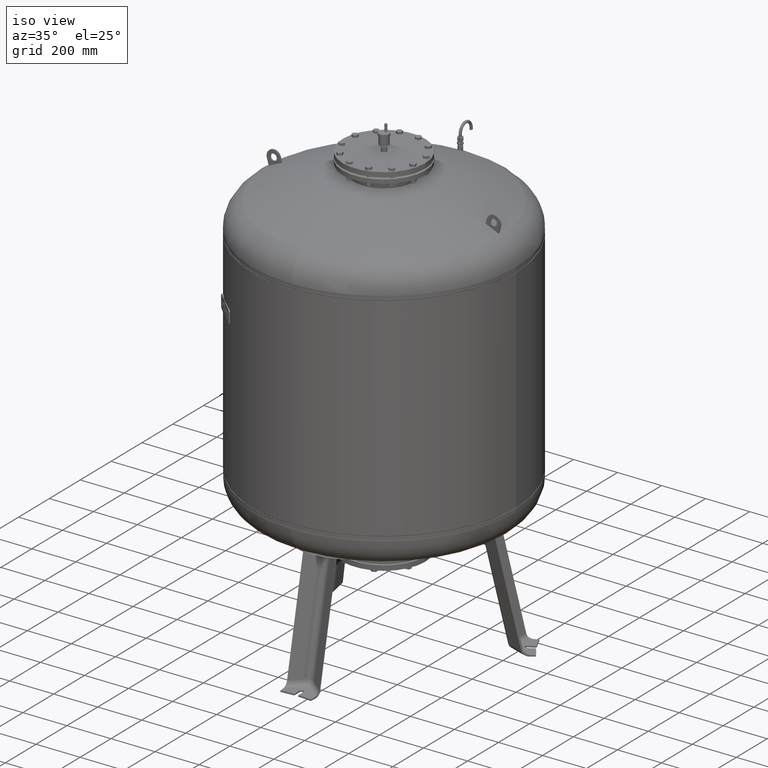
[diagram: clean part render]
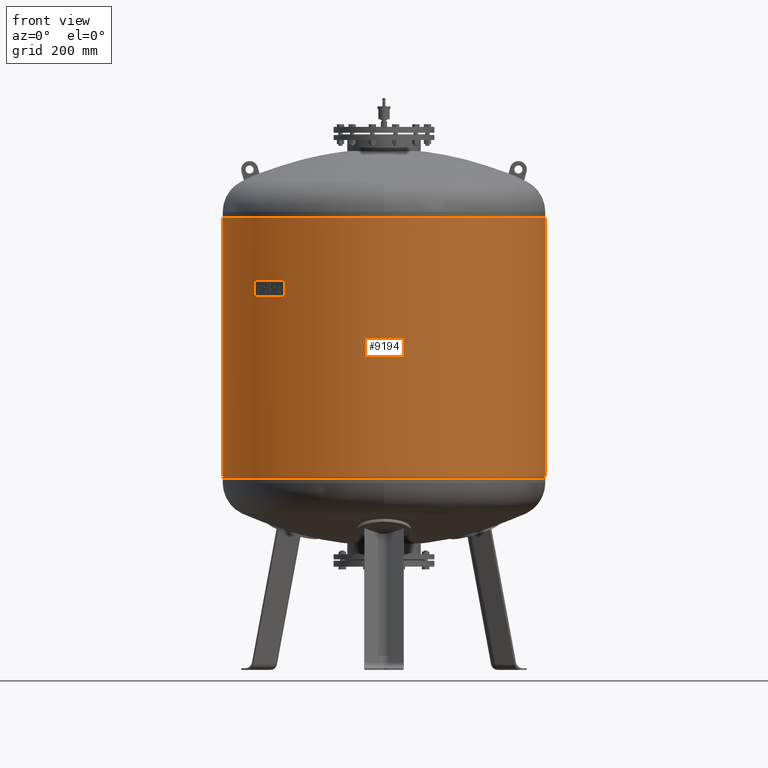
[diagram: tour spotlight — one face highlighted and labeled with its STEP entity id]
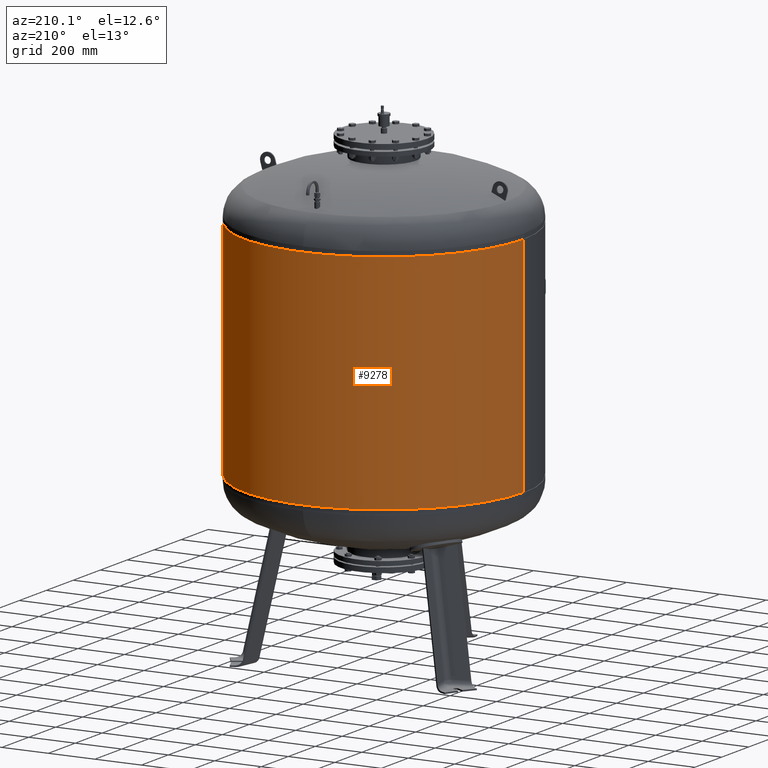
[diagram: tour spotlight — one face highlighted and labeled with its STEP entity id]
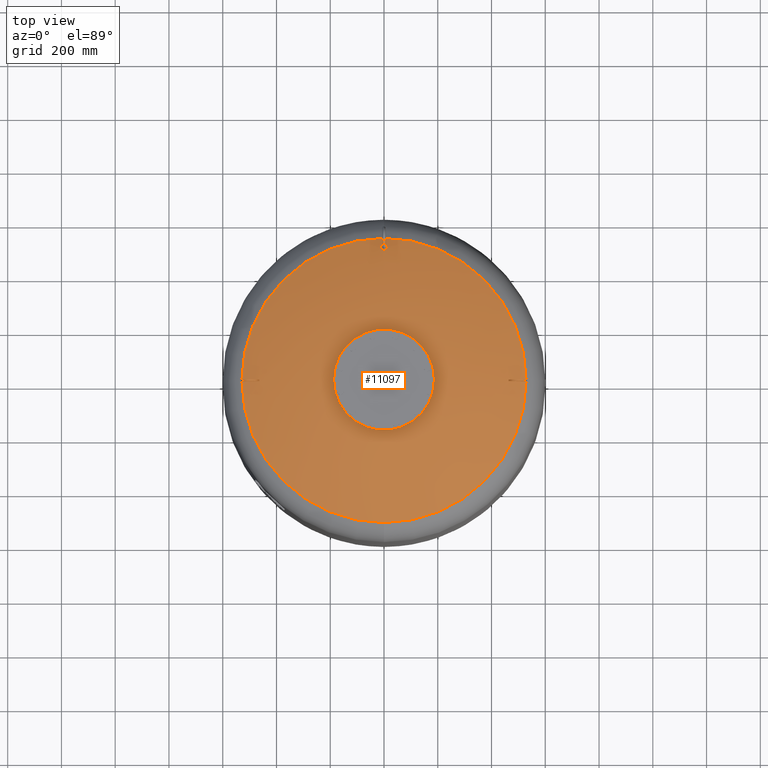
[diagram: tour spotlight — one face highlighted and labeled with its STEP entity id]
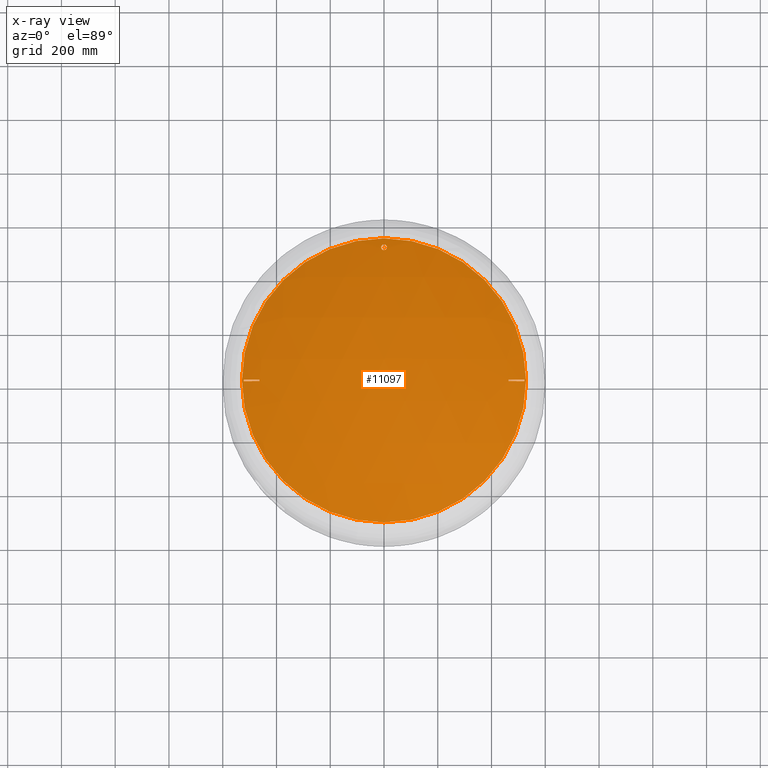
[diagram: x-ray of the same camera — body ghosted, this tour face saturated]
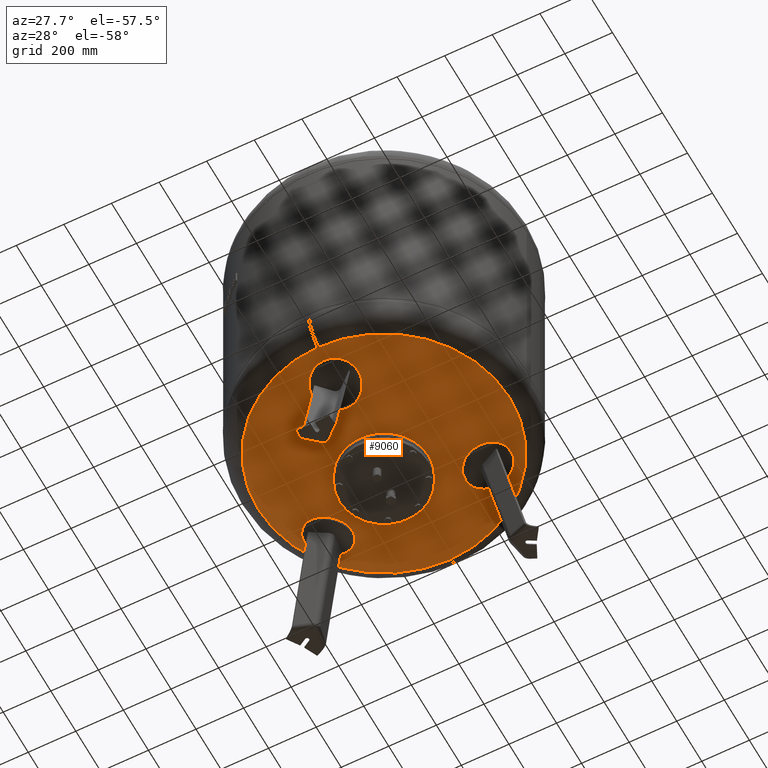
[diagram: tour spotlight — one face highlighted and labeled with its STEP entity id]
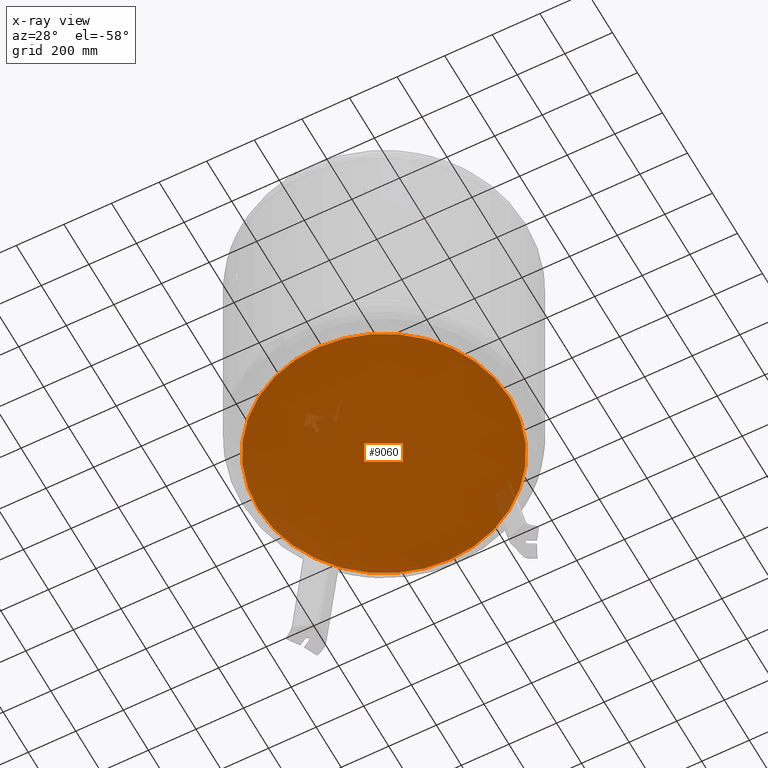
[diagram: x-ray of the same camera — body ghosted, this tour face saturated]
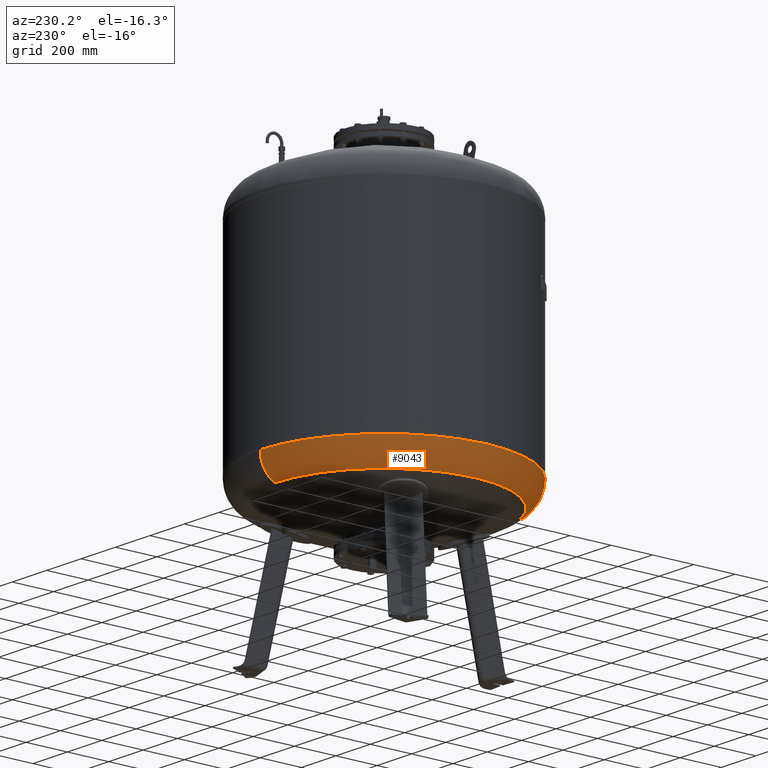
[diagram: tour spotlight — one face highlighted and labeled with its STEP entity id]
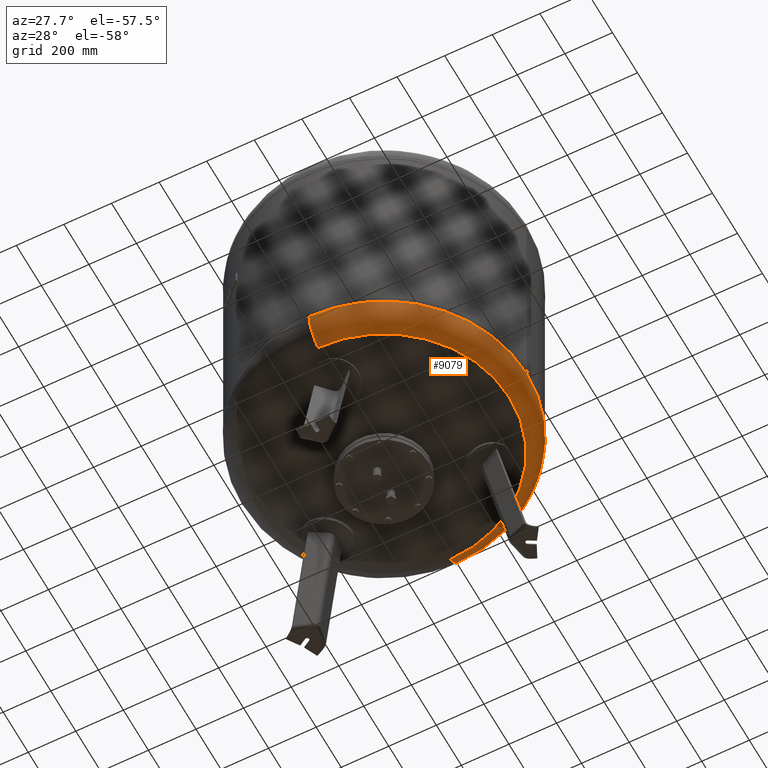
[diagram: tour spotlight — one face highlighted and labeled with its STEP entity id]
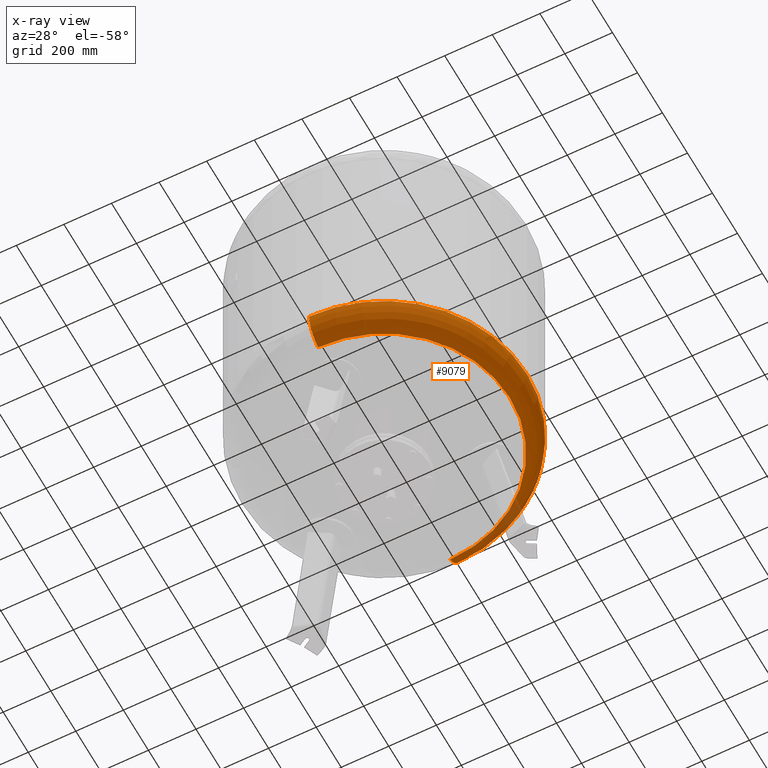
[diagram: x-ray of the same camera — body ghosted, this tour face saturated]
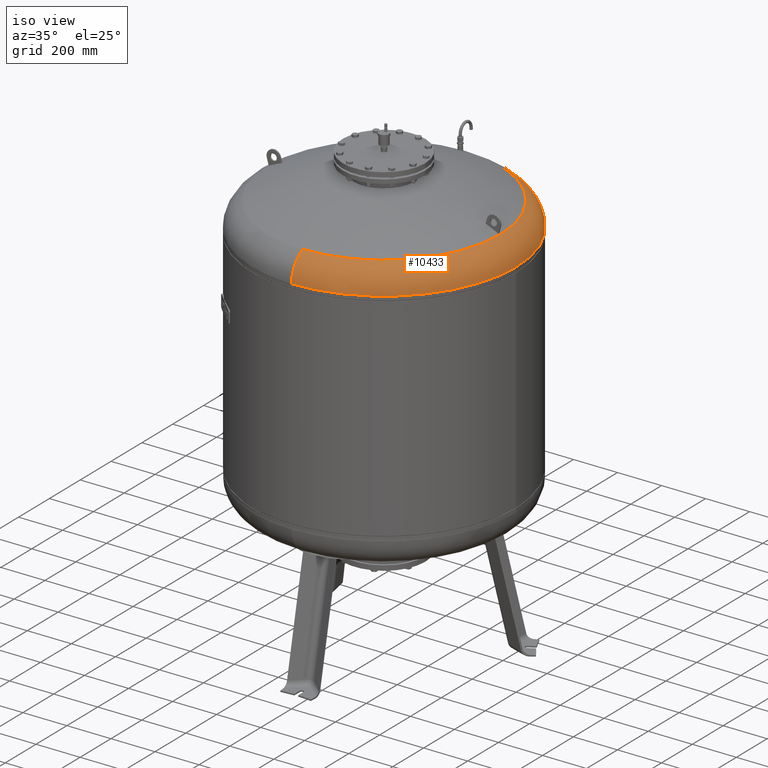
[diagram: tour spotlight — one face highlighted and labeled with its STEP entity id]
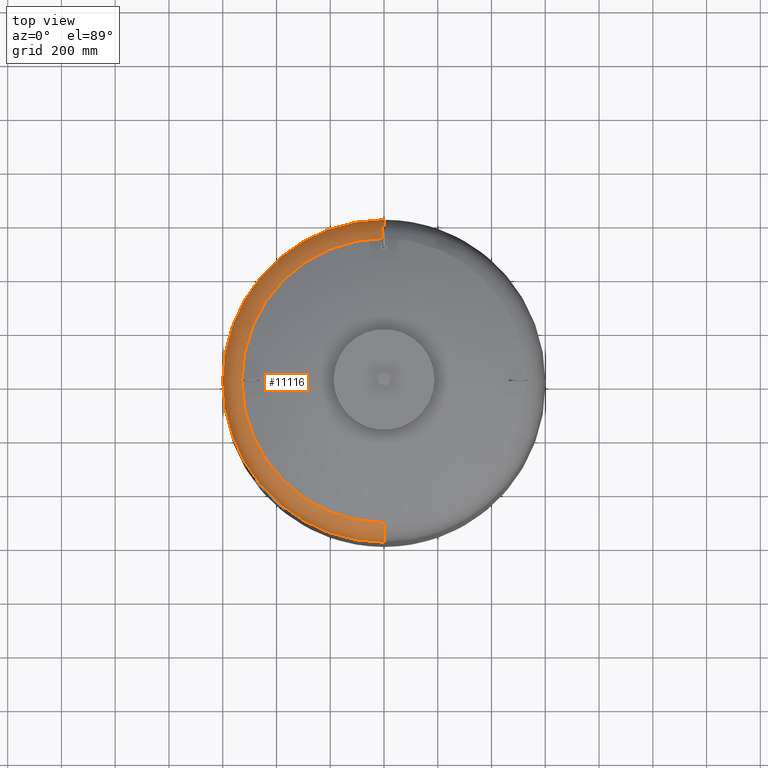
[diagram: tour spotlight — one face highlighted and labeled with its STEP entity id]
A machine part: a face-by-face anatomy tour. The part has 784 B-rep faces; the first image is the clean iso view, then the 8 largest visible faces are spotlighted one at a time (largest first), each with its STEP entity span.

Face 1 — front view, entity #9194. In plain terms, the highlighted cylindrical surface (partial cylindrical patch) has radius 600 mm, axis along (0, 0, 1).
Definition (entity closure, byte-faithful):
#9153=CARTESIAN_POINT('',(8.293918E-015,0.0,1433.500000000000000));
#9154=DIRECTION('',(3.337593E-017,0.0,1.0));
#9155=DIRECTION('',(1.0,0.0,0.0));
#9156=AXIS2_PLACEMENT_3D('',#9153,#9154,#9155);
#9157=CYLINDRICAL_SURFACE('',#9156,600.000000000000450);
#9158=CARTESIAN_POINT('',(600.000000000000570,0.0,1681.999999999999800));
#9159=VERTEX_POINT('',#9158);
#9160=CARTESIAN_POINT('',(600.000000000000110,0.0,717.999999999999770));
#9161=VERTEX_POINT('',#9160);
#9162=CARTESIAN_POINT('',(600.000000000000570,0.0,1681.999999999999800));
#9163=DIRECTION('',(0.0,0.0,-1.0));
#9164=VECTOR('',#9163,964.0);
#9165=LINE('',#9162,#9164);
#9166=EDGE_CURVE('',#9159,#9161,#9165,.T.);
#9167=ORIENTED_EDGE('',*,*,#9166,.F.);
#9168=CARTESIAN_POINT('',(-600.000000000000450,-7.347638E-014,1681.999999999999800));
#9169=VERTEX_POINT('',#9168);
#9170=CARTESIAN_POINT('',(1.658784E-014,0.0,1681.999999999999800));
#9171=DIRECTION('',(0.0,0.0,1.0));
#9172=DIRECTION('',(1.0,0.0,0.0));
#9173=AXIS2_PLACEMENT_3D('',#9170,#9171,#9172);
#9174=CIRCLE('',#9173,600.000000000000570);
#9175=EDGE_CURVE('',#9169,#9159,#9174,.T.);
#9176=ORIENTED_EDGE('',*,*,#9175,.F.);
#9177=CARTESIAN_POINT('',(-600.000000000000110,-7.347638E-014,717.999999999999770));
#9178=VERTEX_POINT('',#9177);
#9179=CARTESIAN_POINT('',(-600.000000000000450,-7.347638E-014,1681.999999999999800));
#9180=DIRECTION('',(0.0,0.0,-1.0));
#9181=VECTOR('',#9180,964.0);
#9182=LINE('',#9179,#9181);
#9183=EDGE_CURVE('',#9169,#9178,#9182,.T.);
#9184=ORIENTED_EDGE('',*,*,#9183,.T.);
#9185=CARTESIAN_POINT('',(-1.658784E-014,0.0,717.999999999999770));
#9186=DIRECTION('',(0.0,0.0,1.0));
#9187=DIRECTION('',(1.0,0.0,0.0));
#9188=AXIS2_PLACEMENT_3D('',#9185,#9186,#9187);
#9189=CIRCLE('',#9188,600.000000000000110);
#9190=EDGE_CURVE('',#9178,#9161,#9189,.T.);
#9191=ORIENTED_EDGE('',*,*,#9190,.T.);
#9192=EDGE_LOOP('',(#9167,#9176,#9184,#9191));
#9193=FACE_OUTER_BOUND('',#9192,.T.);
#9194=ADVANCED_FACE('',(#9193),#9157,.T.);

Face 2 — auxiliary view, entity #9278. In plain terms, the highlighted cylindrical surface (partial cylindrical patch) has radius 600 mm, axis along (0, 0, 1).
Definition (entity closure, byte-faithful):
#9158=CARTESIAN_POINT('',(600.000000000000570,0.0,1681.999999999999800));
#9159=VERTEX_POINT('',#9158);
#9160=CARTESIAN_POINT('',(600.000000000000110,0.0,717.999999999999770));
#9161=VERTEX_POINT('',#9160);
#9162=CARTESIAN_POINT('',(600.000000000000570,0.0,1681.999999999999800));
#9163=DIRECTION('',(0.0,0.0,-1.0));
#9164=VECTOR('',#9163,964.0);
#9165=LINE('',#9162,#9164);
#9166=EDGE_CURVE('',#9159,#9161,#9165,.T.);
#9168=CARTESIAN_POINT('',(-600.000000000000450,-7.347638E-014,1681.999999999999800));
#9169=VERTEX_POINT('',#9168);
#9177=CARTESIAN_POINT('',(-600.000000000000110,-7.347638E-014,717.999999999999770));
#9178=VERTEX_POINT('',#9177);
#9179=CARTESIAN_POINT('',(-600.000000000000450,-7.347638E-014,1681.999999999999800));
#9180=DIRECTION('',(0.0,0.0,-1.0));
#9181=VECTOR('',#9180,964.0);
#9182=LINE('',#9179,#9181);
#9183=EDGE_CURVE('',#9169,#9178,#9182,.T.);
#9251=CARTESIAN_POINT('',(-1.658784E-014,0.0,717.999999999999770));
#9252=DIRECTION('',(0.0,0.0,1.0));
#9253=DIRECTION('',(1.0,0.0,0.0));
#9254=AXIS2_PLACEMENT_3D('',#9251,#9252,#9253);
#9255=CIRCLE('',#9254,600.000000000000110);
#9256=EDGE_CURVE('',#9161,#9178,#9255,.T.);
#9261=CARTESIAN_POINT('',(8.293918E-015,0.0,1433.500000000000000));
#9262=DIRECTION('',(3.337593E-017,0.0,1.0));
#9263=DIRECTION('',(1.0,0.0,0.0));
#9264=AXIS2_PLACEMENT_3D('',#9261,#9262,#9263);
#9265=CYLINDRICAL_SURFACE('',#9264,600.000000000000450);
#9266=ORIENTED_EDGE('',*,*,#9166,.T.);
#9267=ORIENTED_EDGE('',*,*,#9256,.T.);
#9268=ORIENTED_EDGE('',*,*,#9183,.F.);
#9269=CARTESIAN_POINT('',(1.658784E-014,0.0,1681.999999999999800));
#9270=DIRECTION('',(0.0,0.0,1.0));
#9271=DIRECTION('',(1.0,0.0,0.0));
#9272=AXIS2_PLACEMENT_3D('',#9269,#9270,#9271);
#9273=CIRCLE('',#9272,600.000000000000570);
#9274=EDGE_CURVE('',#9159,#9169,#9273,.T.);
#9275=ORIENTED_EDGE('',*,*,#9274,.F.);
#9276=EDGE_LOOP('',(#9266,#9267,#9268,#9275));
#9277=FACE_OUTER_BOUND('',#9276,.T.);
#9278=ADVANCED_FACE('',(#9277),#9265,.T.);

Face 3 — top view, entity #11097. An x-ray twin of the same camera follows (body ghosted, this face saturated) — the face is partly hidden behind the body. In plain terms, the highlighted spherical surface has radius 1207 mm.
Definition (entity closure, byte-faithful):
#10389=CARTESIAN_POINT('',(3.894773E-014,-528.621296296296240,1818.084570483805000));
#10390=VERTEX_POINT('',#10389);
#10406=CARTESIAN_POINT('',(1.036830E-013,528.621296296296240,1818.084570483805000));
#10407=VERTEX_POINT('',#10406);
#10415=CARTESIAN_POINT('',(528.621296296296240,-2.239550E-014,1818.084570483805000));
#10416=VERTEX_POINT('',#10415);
#10417=CARTESIAN_POINT('',(3.410787E-015,-2.239550E-014,1818.084570483805000));
#10418=DIRECTION('',(0.0,0.0,-1.0));
#10419=DIRECTION('',(1.0,0.0,0.0));
#10420=AXIS2_PLACEMENT_3D('',#10417,#10418,#10419);
#10421=CIRCLE('',#10420,528.621296296296240);
#10422=EDGE_CURVE('',#10407,#10416,#10421,.T.);
#10424=CARTESIAN_POINT('',(3.410787E-015,-2.239550E-014,1818.084570483805000));
#10425=DIRECTION('',(0.0,0.0,-1.0));
#10426=DIRECTION('',(1.0,0.0,0.0));
#10427=AXIS2_PLACEMENT_3D('',#10424,#10425,#10426);
#10428=CIRCLE('',#10427,528.621296296296240);
#10429=EDGE_CURVE('',#10416,#10390,#10428,.T.);
#10546=CARTESIAN_POINT('',(-2.007040E-015,505.649999999999860,1828.977681113990700));
#10547=VERTEX_POINT('',#10546);
#10563=CARTESIAN_POINT('',(-1.264167E-015,484.349999999999910,1838.556003782712200));
#10564=VERTEX_POINT('',#10563);
#10571=CARTESIAN_POINT('',(-2.007040E-015,505.649999999999860,1828.977681113990700));
#10572=CARTESIAN_POINT('',(0.665662584297549,505.649999999999860,1828.977681113990700));
#10573=CARTESIAN_POINT('',(1.351770687093055,505.586540768528720,1829.006343822394000));
#10574=CARTESIAN_POINT('',(2.711440963249272,505.322316471514680,1829.125671514436600));
#10575=CARTESIAN_POINT('',(3.385018268838315,505.121615967431920,1829.216307020834800));
#10576=CARTESIAN_POINT('',(4.671659030031331,504.595887700676490,1829.453675611560400));
#10577=CARTESIAN_POINT('',(5.285911664195235,504.270411104392170,1829.600610399233600));
#10578=CARTESIAN_POINT('',(6.417878505985882,503.525973237725340,1829.936594437422400));
#10579=CARTESIAN_POINT('',(6.935591451669527,503.107009891746090,1830.125643340669500));
#10580=CARTESIAN_POINT('',(7.899179737395372,502.177760642695380,1830.544825043460200));
#10581=CARTESIAN_POINT('',(8.368086172563061,501.627357286810370,1830.793043409988300));
#10582=CARTESIAN_POINT('',(9.188061671035127,500.433806541515650,1831.331089151719900));
#10583=CARTESIAN_POINT('',(9.539219073899449,499.790709135051770,1831.620892770933300));
#10584=CARTESIAN_POINT('',(10.100224561864263,498.454426017124770,1832.222810133959700));
#10585=CARTESIAN_POINT('',(10.310462392525917,497.760351114898870,1832.535323620084000));
#10586=CARTESIAN_POINT('',(10.585380396556634,496.369268012084210,1833.161397323186300));
#10587=CARTESIAN_POINT('',(10.650000000000000,495.672249771665920,1833.474961828124200));
#10588=CARTESIAN_POINT('',(10.650000000000000,494.328136578031490,1834.079385679025300));
#10589=CARTESIAN_POINT('',(10.585453694089722,493.631410911690520,1834.392563213996700));
#10590=CARTESIAN_POINT('',(10.310736765036932,492.240729558734190,1835.017401333808700));
#10591=CARTESIAN_POINT('',(10.100625147679906,491.546764270494350,1835.329066489736500));
#10592=CARTESIAN_POINT('',(9.539857037879536,490.210574780593110,1835.928918118605900));
#10593=CARTESIAN_POINT('',(9.188808647865375,489.567459190703400,1836.217505560420200));
#10594=CARTESIAN_POINT('',(8.369020497877592,488.373824638455520,1836.752944631033400));
#10595=CARTESIAN_POINT('',(7.900192687897295,487.823356474835290,1836.999774688893900));
#10596=CARTESIAN_POINT('',(6.936540506419655,486.893778895747120,1837.416486438550200));
#10597=CARTESIAN_POINT('',(6.418662963042111,486.474599944024530,1837.604341560041300));
#10598=CARTESIAN_POINT('',(5.286383442477856,485.729841940405380,1837.938035283821800));
#10599=CARTESIAN_POINT('',(4.671983453209442,485.404260841614930,1838.083876063063600));
#10600=CARTESIAN_POINT('',(3.385112822109917,484.878406691485680,1838.319396709681300));
#10601=CARTESIAN_POINT('',(2.711455124781848,484.677684778344370,1838.409278534069900));
#10602=CARTESIAN_POINT('',(1.351712007087142,484.413449330400060,1838.527596291778100));
#10603=CARTESIAN_POINT('',(0.665611636080549,484.349999999999910,1838.556003782712200));
#10604=CARTESIAN_POINT('',(-1.264167E-015,484.349999999999910,1838.556003782712200));
#10605=B_SPLINE_CURVE_WITH_KNOTS('',3,(#10571,#10572,#10573,#10574,#10575,#10576,#10577,#10578,#10579,#10580,#10581,#10582,#10583,#10584,#10585,#10586,#10587,#10588,#10589,#10590,#10591,#10592,#10593,#10594,#10595,#10596,#10597,#10598,#10599,#10600,#10601,#10602,#10603,#10604),.UNSPECIFIED.,.F.,.U.,(4,2,2,2,2,2,2,2,2,2,2,2,2,2,2,2,4),(0.0,1.996987752892652,3.993975505785304,5.990963258677956,7.987951011570608,10.199226399313966,12.410501787057324,14.621777174800682,16.833052562544040,19.043057104816825,21.253061647089609,23.463066189362394,25.673070731635178,27.669905639876831,29.666740548118483,31.663575456360135,33.660410364601788),.UNSPECIFIED.);
#10606=EDGE_CURVE('',#10547,#10564,#10605,.T.);
#10617=CARTESIAN_POINT('',(-1.264167E-015,484.349999999999910,1838.556003782712200));
#10618=CARTESIAN_POINT('',(-0.665611636080552,484.349999999999910,1838.556003782712200));
#10619=CARTESIAN_POINT('',(-1.351712007087143,484.413449330400060,1838.527596291778100));
#10620=CARTESIAN_POINT('',(-2.711455124781850,484.677684778344370,1838.409278534069900));
#10621=CARTESIAN_POINT('',(-3.385112822109919,484.878406691485680,1838.319396709681300));
#10622=CARTESIAN_POINT('',(-4.671983453209444,485.404260841614930,1838.083876063063600));
#10623=CARTESIAN_POINT('',(-5.286383442477860,485.729841940405380,1837.938035283821800));
#10624=CARTESIAN_POINT('',(-6.418662963042113,486.474599944024530,1837.604341560041300));
#10625=CARTESIAN_POINT('',(-6.936540506419650,486.893778895747120,1837.416486438550200));
#10626=CARTESIAN_POINT('',(-7.900192687897292,487.823356474835290,1836.999774688893900));
#10627=CARTESIAN_POINT('',(-8.369020497877603,488.373824638455520,1836.752944631033400));
#10628=CARTESIAN_POINT('',(-9.188808647865416,489.567459190703400,1836.217505560420200));
#10629=CARTESIAN_POINT('',(-9.539857037879596,490.210574780593220,1835.928918118605900));
#10630=CARTESIAN_POINT('',(-10.100625147679949,491.546764270494460,1835.329066489736500));
#10631=CARTESIAN_POINT('',(-10.310736765036959,492.240729558734240,1835.017401333808500));
#10632=CARTESIAN_POINT('',(-10.585453694089725,493.631410911690520,1834.392563213996500));
#10633=CARTESIAN_POINT('',(-10.650000000000004,494.328136578031490,1834.079385679025300));
#10634=CARTESIAN_POINT('',(-10.650000000000004,495.672249771665860,1833.474961828124200));
#10635=CARTESIAN_POINT('',(-10.585380396556637,496.369268012084210,1833.161397323186300));
#10636=CARTESIAN_POINT('',(-10.310462392525912,497.760351114898920,1832.535323620084000));
#10637=CARTESIAN_POINT('',(-10.100224561864266,498.454426017124770,1832.222810133959700));
#10638=CARTESIAN_POINT('',(-9.539219073899460,499.790709135051770,1831.620892770933300));
#10639=CARTESIAN_POINT('',(-9.188061671035145,500.433806541515590,1831.331089151719900));
#10640=CARTESIAN_POINT('',(-8.368086172563105,501.627357286810200,1830.793043409988300));
#10641=CARTESIAN_POINT('',(-7.899179737395371,502.177760642695380,1830.544825043460400));
#10642=CARTESIAN_POINT('',(-6.935591451669527,503.107009891746090,1830.125643340669700));
#10643=CARTESIAN_POINT('',(-6.417878505985903,503.525973237725280,1829.936594437422400));
#10644=CARTESIAN_POINT('',(-5.285911664195240,504.270411104392170,1829.600610399233600));
#10645=CARTESIAN_POINT('',(-4.671659030031345,504.595887700676490,1829.453675611560400));
#10646=CARTESIAN_POINT('',(-3.385018268838326,505.121615967431920,1829.216307020834800));
#10647=CARTESIAN_POINT('',(-2.711440963249284,505.322316471514680,1829.125671514436600));
#10648=CARTESIAN_POINT('',(-1.351770687093066,505.586540768528720,1829.006343822394000));
#10649=CARTESIAN_POINT('',(-0.665662584297557,505.649999999999860,1828.977681113990700));
#10650=CARTESIAN_POINT('',(-2.007040E-015,505.649999999999860,1828.977681113990700));
#10651=B_SPLINE_CURVE_WITH_KNOTS('',3,(#10617,#10618,#10619,#10620,#10621,#10622,#10623,#10624,#10625,#10626,#10627,#10628,#10629,#10630,#10631,#10632,#10633,#10634,#10635,#10636,#10637,#10638,#10639,#10640,#10641,#10642,#10643,#10644,#10645,#10646,#10647,#10648,#10649,#10650),.UNSPECIFIED.,.F.,.U.,(4,2,2,2,2,2,2,2,2,2,2,2,2,2,2,2,4),(33.660410364601788,35.657245272843440,37.654080181085092,39.650915089326745,41.647749997568390,43.857754539841181,46.067759082113966,48.277763624386751,50.487768166659535,52.699043554402870,54.910318942146205,57.121594329889540,59.332869717632875,61.329857470525539,63.326845223418196,65.323832976310854,67.320820729203518),.UNSPECIFIED.);
#10652=EDGE_CURVE('',#10564,#10547,#10651,.T.);
#10680=CARTESIAN_POINT('',(-463.451600218966230,-3.000000000000292,1847.474142479079300));
#10681=VERTEX_POINT('',#10680);
#10682=CARTESIAN_POINT('',(-521.618748390259610,-2.999999999999862,1821.464000933324300));
#10683=VERTEX_POINT('',#10682);
#10684=CARTESIAN_POINT('',(1.015543E-013,-3.000000000004973,733.0));
#10685=DIRECTION('',(0.0,-1.0,0.0));
#10686=DIRECTION('',(0.0,0.0,1.0));
#10687=AXIS2_PLACEMENT_3D('',#10684,#10685,#10686);
#10688=CIRCLE('',#10687,1206.996271742378000);
#10689=EDGE_CURVE('',#10681,#10683,#10688,.T.);
#10732=CARTESIAN_POINT('',(-463.451600218966290,2.999999999999727,1847.474142479079500));
#10733=VERTEX_POINT('',#10732);
#10734=CARTESIAN_POINT('',(-143.673995061822890,7.801844E-013,693.196972395375950));
#10735=DIRECTION('',(0.963701753162816,-6.720348E-015,0.266981143436978));
#10736=DIRECTION('',(-0.266981143436977,0.0,0.963701753162815));
#10737=AXIS2_PLACEMENT_3D('',#10734,#10735,#10736);
#10738=CIRCLE('',#10737,1197.757280143385700);
#10739=EDGE_CURVE('',#10733,#10681,#10738,.T.);
#10782=CARTESIAN_POINT('',(-521.618748390259730,3.000000000000095,1821.464000933324100));
#10783=VERTEX_POINT('',#10782);
#10784=CARTESIAN_POINT('',(-204.387205511080400,1.203566E-012,676.377160358846370));
#10785=DIRECTION('',(-0.963701753162815,6.720348E-015,-0.266981143436977));
#10786=DIRECTION('',(0.266981143436977,0.0,-0.963701753162815));
#10787=AXIS2_PLACEMENT_3D('',#10784,#10785,#10786);
#10788=CIRCLE('',#10787,1188.220823018324600);
#10789=EDGE_CURVE('',#10683,#10783,#10788,.T.);
#10814=CARTESIAN_POINT('',(1.458865E-013,2.999999999995042,733.0));
#10815=DIRECTION('',(0.0,1.0,0.0));
#10816=DIRECTION('',(0.0,0.0,-1.0));
#10817=AXIS2_PLACEMENT_3D('',#10814,#10815,#10816);
#10818=CIRCLE('',#10817,1206.996271742378000);
#10819=EDGE_CURVE('',#10783,#10733,#10818,.T.);
#10854=CARTESIAN_POINT('',(463.451600218966350,2.999999999999727,1847.474142479079800));
#10855=VERTEX_POINT('',#10854);
#10856=CARTESIAN_POINT('',(521.618748390259730,3.000000000000095,1821.464000933324300));
#10857=VERTEX_POINT('',#10856);
#10858=CARTESIAN_POINT('',(1.015543E-013,2.999999999995042,733.0));
#10859=DIRECTION('',(0.0,1.0,0.0));
#10860=DIRECTION('',(0.0,0.0,-1.0));
#10861=AXIS2_PLACEMENT_3D('',#10858,#10859,#10860);
#10862=CIRCLE('',#10861,1206.996271742378000);
#10863=EDGE_CURVE('',#10855,#10857,#10862,.T.);
#10906=CARTESIAN_POINT('',(463.451600218966230,-3.000000000000292,1847.474142479079300));
#10907=VERTEX_POINT('',#10906);
#10908=CARTESIAN_POINT('',(143.673995061822890,7.801844E-013,693.196972395375950));
#10909=DIRECTION('',(-0.963701753162816,-6.720348E-015,0.266981143436978));
#10910=DIRECTION('',(-0.266981143436977,0.0,-0.963701753162815));
#10911=AXIS2_PLACEMENT_3D('',#10908,#10909,#10910);
#10912=CIRCLE('',#10911,1197.757280143385700);
#10913=EDGE_CURVE('',#10907,#10855,#10912,.T.);
#10977=CARTESIAN_POINT('',(521.618748390259610,-2.999999999999862,1821.464000933324300));
#10978=VERTEX_POINT('',#10977);
#10979=CARTESIAN_POINT('',(204.387205511080450,1.203566E-012,676.377160358846370));
#10980=DIRECTION('',(0.963701753162815,6.720348E-015,-0.266981143436977));
#10981=DIRECTION('',(0.266981143436977,0.0,0.963701753162815));
#10982=AXIS2_PLACEMENT_3D('',#10979,#10980,#10981);
#10983=CIRCLE('',#10982,1188.220823018324600);
#10984=EDGE_CURVE('',#10857,#10978,#10983,.T.);
#11048=CARTESIAN_POINT('',(1.458865E-013,-3.000000000004973,733.0));
#11049=DIRECTION('',(0.0,-1.0,0.0));
#11050=DIRECTION('',(0.0,0.0,1.0));
#11051=AXIS2_PLACEMENT_3D('',#11048,#11049,#11050);
#11052=CIRCLE('',#11051,1206.996271742378000);
#11053=EDGE_CURVE('',#10978,#10907,#11052,.T.);
#11065=CARTESIAN_POINT('',(1.237204E-013,-2.217223E-013,733.0));
#11066=DIRECTION('',(0.0,-1.0,0.0));
#11067=DIRECTION('',(-1.0,0.0,0.0));
#11068=AXIS2_PLACEMENT_3D('',#11065,#11066,#11067);
#11069=SPHERICAL_SURFACE('',#11068,1207.000000000000200);
#11070=ORIENTED_EDGE('',*,*,#10606,.T.);
#11071=ORIENTED_EDGE('',*,*,#10652,.T.);
#11072=EDGE_LOOP('',(#11070,#11071));
#11073=FACE_OUTER_BOUND('',#11072,.T.);
#11074=ORIENTED_EDGE('',*,*,#10739,.T.);
#11075=ORIENTED_EDGE('',*,*,#10689,.T.);
#11076=ORIENTED_EDGE('',*,*,#10789,.T.);
#11077=ORIENTED_EDGE('',*,*,#10819,.T.);
#11078=EDGE_LOOP('',(#11074,#11075,#11076,#11077));
#11079=FACE_BOUND('',#11078,.T.);
#11080=ORIENTED_EDGE('',*,*,#10913,.T.);
#11081=ORIENTED_EDGE('',*,*,#10863,.T.);
#11082=ORIENTED_EDGE('',*,*,#10984,.T.);
#11083=ORIENTED_EDGE('',*,*,#11053,.T.);
#11084=EDGE_LOOP('',(#11080,#11081,#11082,#11083));
#11085=FACE_BOUND('',#11084,.T.);
#11086=ORIENTED_EDGE('',*,*,#10429,.F.);
#11087=ORIENTED_EDGE('',*,*,#10422,.F.);
#11088=CARTESIAN_POINT('',(3.410787E-015,-2.239550E-014,1818.084570483805000));
#11089=DIRECTION('',(0.0,0.0,-1.0));
#11090=DIRECTION('',(1.0,0.0,0.0));
#11091=AXIS2_PLACEMENT_3D('',#11088,#11089,#11090);
#11092=CIRCLE('',#11091,528.621296296296240);
#11093=EDGE_CURVE('',#10390,#10407,#11092,.T.);
#11094=ORIENTED_EDGE('',*,*,#11093,.F.);
#11095=EDGE_LOOP('',(#11086,#11087,#11094));
#11096=FACE_BOUND('',#11095,.T.);
#11097=ADVANCED_FACE('',(#11073,#11079,#11085,#11096),#11069,.T.);

Face 4 — auxiliary view, entity #9060. An x-ray twin of the same camera follows (body ghosted, this face saturated) — the face is partly hidden behind the body. In plain terms, the highlighted spherical surface has radius 1207 mm.
Definition (entity closure, byte-faithful):
#8999=CARTESIAN_POINT('',(-5.387807E-014,-528.621296296296240,581.915429516194880));
#9000=VERTEX_POINT('',#8999);
#9016=CARTESIAN_POINT('',(-1.186134E-013,528.621296296296240,581.915429516195100));
#9017=VERTEX_POINT('',#9016);
#9025=CARTESIAN_POINT('',(-528.621296296296240,-2.239550E-014,581.915429516194990));
#9026=VERTEX_POINT('',#9025);
#9027=CARTESIAN_POINT('',(-1.834112E-014,-2.239550E-014,581.915429516194990));
#9028=DIRECTION('',(0.0,0.0,1.0));
#9029=DIRECTION('',(-1.0,0.0,0.0));
#9030=AXIS2_PLACEMENT_3D('',#9027,#9028,#9029);
#9031=CIRCLE('',#9030,528.621296296296240);
#9032=EDGE_CURVE('',#9017,#9026,#9031,.T.);
#9034=CARTESIAN_POINT('',(-1.834112E-014,-2.239550E-014,581.915429516194990));
#9035=DIRECTION('',(0.0,0.0,1.0));
#9036=DIRECTION('',(-1.0,0.0,0.0));
#9037=AXIS2_PLACEMENT_3D('',#9034,#9035,#9036);
#9038=CIRCLE('',#9037,528.621296296296240);
#9039=EDGE_CURVE('',#9026,#9000,#9038,.T.);
#9044=CARTESIAN_POINT('',(-2.715353E-013,-2.217223E-013,1667.0));
#9045=DIRECTION('',(0.0,-1.0,0.0));
#9046=DIRECTION('',(1.0,0.0,0.0));
#9047=AXIS2_PLACEMENT_3D('',#9044,#9045,#9046);
#9048=SPHERICAL_SURFACE('',#9047,1207.000000000000200);
#9049=ORIENTED_EDGE('',*,*,#9039,.F.);
#9050=ORIENTED_EDGE('',*,*,#9032,.F.);
#9051=CARTESIAN_POINT('',(-1.834112E-014,-2.239550E-014,581.915429516194990));
#9052=DIRECTION('',(0.0,0.0,1.0));
#9053=DIRECTION('',(-1.0,0.0,0.0));
#9054=AXIS2_PLACEMENT_3D('',#9051,#9052,#9053);
#9055=CIRCLE('',#9054,528.621296296296240);
#9056=EDGE_CURVE('',#9000,#9017,#9055,.T.);
#9057=ORIENTED_EDGE('',*,*,#9056,.F.);
#9058=EDGE_LOOP('',(#9049,#9050,#9057));
#9059=FACE_OUTER_BOUND('',#9058,.T.);
#9060=ADVANCED_FACE('',(#9059),#9048,.T.);

Face 5 — auxiliary view, entity #9043. In plain terms, the highlighted toroidal blend (fillet) surface has major radius 473 mm and minor (blend) radius 127 mm.
Definition (entity closure, byte-faithful):
#8948=CARTESIAN_POINT('',(-600.0,-4.336858E-014,696.087542566272190));
#8949=VERTEX_POINT('',#8948);
#8973=CARTESIAN_POINT('',(-1.445307E-013,600.0,696.087542566272420));
#8974=VERTEX_POINT('',#8973);
#8982=CARTESIAN_POINT('',(-3.551733E-014,-4.336858E-014,696.087542566272300));
#8983=DIRECTION('',(0.0,0.0,1.0));
#8984=DIRECTION('',(-1.0,0.0,0.0));
#8985=AXIS2_PLACEMENT_3D('',#8982,#8983,#8984);
#8986=CIRCLE('',#8985,600.0);
#8987=EDGE_CURVE('',#8974,#8949,#8986,.T.);
#8992=CARTESIAN_POINT('',(-7.105427E-014,-4.336858E-014,696.087542566272300));
#8993=DIRECTION('',(-1.504413E-016,-1.836970E-016,1.0));
#8994=DIRECTION('',(0.0,-1.0,0.0));
#8995=AXIS2_PLACEMENT_3D('',#8992,#8993,#8994);
#8996=TOROIDAL_SURFACE('',#8995,472.999999999999890,127.000000000000010);
#8997=CARTESIAN_POINT('',(-7.105427E-014,-600.0,696.087542566272190));
#8998=VERTEX_POINT('',#8997);
#8999=CARTESIAN_POINT('',(-5.387807E-014,-528.621296296296240,581.915429516194880));
#9000=VERTEX_POINT('',#8999);
#9001=CARTESIAN_POINT('',(-7.105427E-014,-472.999999999999940,696.087542566272190));
#9002=DIRECTION('',(1.0,0.0,0.0));
#9003=DIRECTION('',(0.0,-1.0,0.0));
#9004=AXIS2_PLACEMENT_3D('',#9001,#9002,#9003);
#9005=CIRCLE('',#9004,127.000000000000010);
#9006=EDGE_CURVE('',#8998,#9000,#9005,.T.);
#9007=ORIENTED_EDGE('',*,*,#9006,.F.);
#9008=CARTESIAN_POINT('',(-3.551733E-014,-4.336858E-014,696.087542566272300));
#9009=DIRECTION('',(0.0,0.0,1.0));
#9010=DIRECTION('',(-1.0,0.0,0.0));
#9011=AXIS2_PLACEMENT_3D('',#9008,#9009,#9010);
#9012=CIRCLE('',#9011,600.0);
#9013=EDGE_CURVE('',#8949,#8998,#9012,.T.);
#9014=ORIENTED_EDGE('',*,*,#9013,.F.);
#9015=ORIENTED_EDGE('',*,*,#8987,.F.);
#9016=CARTESIAN_POINT('',(-1.186134E-013,528.621296296296240,581.915429516195100));
#9017=VERTEX_POINT('',#9016);
#9018=CARTESIAN_POINT('',(-1.289782E-013,472.999999999999830,696.087542566272420));
#9019=DIRECTION('',(-1.0,0.0,0.0));
#9020=DIRECTION('',(0.0,1.0,0.0));
#9021=AXIS2_PLACEMENT_3D('',#9018,#9019,#9020);
#9022=CIRCLE('',#9021,127.000000000000010);
#9023=EDGE_CURVE('',#8974,#9017,#9022,.T.);
#9024=ORIENTED_EDGE('',*,*,#9023,.T.);
#9025=CARTESIAN_POINT('',(-528.621296296296240,-2.239550E-014,581.915429516194990));
#9026=VERTEX_POINT('',#9025);
#9027=CARTESIAN_POINT('',(-1.834112E-014,-2.239550E-014,581.915429516194990));
#9028=DIRECTION('',(0.0,0.0,1.0));
#9029=DIRECTION('',(-1.0,0.0,0.0));
#9030=AXIS2_PLACEMENT_3D('',#9027,#9028,#9029);
#9031=CIRCLE('',#9030,528.621296296296240);
#9032=EDGE_CURVE('',#9017,#9026,#9031,.T.);
#9033=ORIENTED_EDGE('',*,*,#9032,.T.);
#9034=CARTESIAN_POINT('',(-1.834112E-014,-2.239550E-014,581.915429516194990));
#9035=DIRECTION('',(0.0,0.0,1.0));
#9036=DIRECTION('',(-1.0,0.0,0.0));
#9037=AXIS2_PLACEMENT_3D('',#9034,#9035,#9036);
#9038=CIRCLE('',#9037,528.621296296296240);
#9039=EDGE_CURVE('',#9026,#9000,#9038,.T.);
#9040=ORIENTED_EDGE('',*,*,#9039,.T.);
#9041=EDGE_LOOP('',(#9007,#9014,#9015,#9024,#9033,#9040));
#9042=FACE_OUTER_BOUND('',#9041,.T.);
#9043=ADVANCED_FACE('',(#9042),#8996,.T.);

Face 6 — auxiliary view, entity #9079. An x-ray twin of the same camera follows (body ghosted, this face saturated) — the face is partly hidden behind the body. In plain terms, the highlighted toroidal blend (fillet) surface has major radius 473 mm and minor (blend) radius 127 mm.
Definition (entity closure, byte-faithful):
#8965=CARTESIAN_POINT('',(599.999999999999890,3.010780E-014,696.087542566272300));
#8966=VERTEX_POINT('',#8965);
#8973=CARTESIAN_POINT('',(-1.445307E-013,600.0,696.087542566272420));
#8974=VERTEX_POINT('',#8973);
#8975=CARTESIAN_POINT('',(-3.551733E-014,-4.336858E-014,696.087542566272300));
#8976=DIRECTION('',(0.0,0.0,1.0));
#8977=DIRECTION('',(-1.0,0.0,0.0));
#8978=AXIS2_PLACEMENT_3D('',#8975,#8976,#8977);
#8979=CIRCLE('',#8978,600.0);
#8980=EDGE_CURVE('',#8966,#8974,#8979,.T.);
#8997=CARTESIAN_POINT('',(-7.105427E-014,-600.0,696.087542566272190));
#8998=VERTEX_POINT('',#8997);
#8999=CARTESIAN_POINT('',(-5.387807E-014,-528.621296296296240,581.915429516194880));
#9000=VERTEX_POINT('',#8999);
#9001=CARTESIAN_POINT('',(-7.105427E-014,-472.999999999999940,696.087542566272190));
#9002=DIRECTION('',(1.0,0.0,0.0));
#9003=DIRECTION('',(0.0,-1.0,0.0));
#9004=AXIS2_PLACEMENT_3D('',#9001,#9002,#9003);
#9005=CIRCLE('',#9004,127.000000000000010);
#9006=EDGE_CURVE('',#8998,#9000,#9005,.T.);
#9016=CARTESIAN_POINT('',(-1.186134E-013,528.621296296296240,581.915429516195100));
#9017=VERTEX_POINT('',#9016);
#9018=CARTESIAN_POINT('',(-1.289782E-013,472.999999999999830,696.087542566272420));
#9019=DIRECTION('',(-1.0,0.0,0.0));
#9020=DIRECTION('',(0.0,1.0,0.0));
#9021=AXIS2_PLACEMENT_3D('',#9018,#9019,#9020);
#9022=CIRCLE('',#9021,127.000000000000010);
#9023=EDGE_CURVE('',#8974,#9017,#9022,.T.);
#9051=CARTESIAN_POINT('',(-1.834112E-014,-2.239550E-014,581.915429516194990));
#9052=DIRECTION('',(0.0,0.0,1.0));
#9053=DIRECTION('',(-1.0,0.0,0.0));
#9054=AXIS2_PLACEMENT_3D('',#9051,#9052,#9053);
#9055=CIRCLE('',#9054,528.621296296296240);
#9056=EDGE_CURVE('',#9000,#9017,#9055,.T.);
#9061=CARTESIAN_POINT('',(-7.105427E-014,-4.336858E-014,696.087542566272300));
#9062=DIRECTION('',(-1.504413E-016,-1.836970E-016,1.0));
#9063=DIRECTION('',(0.0,-1.0,0.0));
#9064=AXIS2_PLACEMENT_3D('',#9061,#9062,#9063);
#9065=TOROIDAL_SURFACE('',#9064,472.999999999999890,127.000000000000010);
#9066=ORIENTED_EDGE('',*,*,#9006,.T.);
#9067=ORIENTED_EDGE('',*,*,#9056,.T.);
#9068=ORIENTED_EDGE('',*,*,#9023,.F.);
#9069=ORIENTED_EDGE('',*,*,#8980,.F.);
#9070=CARTESIAN_POINT('',(-3.551733E-014,-4.336858E-014,696.087542566272300));
#9071=DIRECTION('',(0.0,0.0,1.0));
#9072=DIRECTION('',(-1.0,0.0,0.0));
#9073=AXIS2_PLACEMENT_3D('',#9070,#9071,#9072);
#9074=CIRCLE('',#9073,600.0);
#9075=EDGE_CURVE('',#8998,#8966,#9074,.T.);
#9076=ORIENTED_EDGE('',*,*,#9075,.F.);
#9077=EDGE_LOOP('',(#9066,#9067,#9068,#9069,#9076));
#9078=FACE_OUTER_BOUND('',#9077,.T.);
#9079=ADVANCED_FACE('',(#9078),#9065,.T.);

Face 7 — iso view, entity #10433. In plain terms, the highlighted toroidal blend (fillet) surface has major radius 473 mm and minor (blend) radius 127 mm.
Definition (entity closure, byte-faithful):
#10338=CARTESIAN_POINT('',(600.0,-4.336858E-014,1703.912457433727700));
#10339=VERTEX_POINT('',#10338);
#10363=CARTESIAN_POINT('',(1.156183E-013,600.0,1703.912457433727700));
#10364=VERTEX_POINT('',#10363);
#10372=CARTESIAN_POINT('',(6.604942E-015,-4.336858E-014,1703.912457433727700));
#10373=DIRECTION('',(0.0,0.0,-1.0));
#10374=DIRECTION('',(1.0,0.0,0.0));
#10375=AXIS2_PLACEMENT_3D('',#10372,#10373,#10374);
#10376=CIRCLE('',#10375,600.0);
#10377=EDGE_CURVE('',#10364,#10339,#10376,.T.);
#10382=CARTESIAN_POINT('',(4.214189E-014,-4.336858E-014,1703.912457433727700));
#10383=DIRECTION('',(2.797667E-017,-1.836970E-016,-1.0));
#10384=DIRECTION('',(0.0,-1.0,0.0));
#10385=AXIS2_PLACEMENT_3D('',#10382,#10383,#10384);
#10386=TOROIDAL_SURFACE('',#10385,472.999999999999890,127.000000000000010);
#10387=CARTESIAN_POINT('',(4.214189E-014,-600.0,1703.912457433727700));
#10388=VERTEX_POINT('',#10387);
#10389=CARTESIAN_POINT('',(3.894773E-014,-528.621296296296240,1818.084570483805000));
#10390=VERTEX_POINT('',#10389);
#10391=CARTESIAN_POINT('',(4.214189E-014,-472.999999999999940,1703.912457433727700));
#10392=DIRECTION('',(-1.0,0.0,0.0));
#10393=DIRECTION('',(0.0,-1.0,0.0));
#10394=AXIS2_PLACEMENT_3D('',#10391,#10392,#10393);
#10395=CIRCLE('',#10394,127.000000000000010);
#10396=EDGE_CURVE('',#10388,#10390,#10395,.T.);
#10397=ORIENTED_EDGE('',*,*,#10396,.F.);
#10398=CARTESIAN_POINT('',(6.604942E-015,-4.336858E-014,1703.912457433727700));
#10399=DIRECTION('',(0.0,0.0,-1.0));
#10400=DIRECTION('',(1.0,0.0,0.0));
#10401=AXIS2_PLACEMENT_3D('',#10398,#10399,#10400);
#10402=CIRCLE('',#10401,600.0);
#10403=EDGE_CURVE('',#10339,#10388,#10402,.T.);
#10404=ORIENTED_EDGE('',*,*,#10403,.F.);
#10405=ORIENTED_EDGE('',*,*,#10377,.F.);
#10406=CARTESIAN_POINT('',(1.036830E-013,528.621296296296240,1818.084570483805000));
#10407=VERTEX_POINT('',#10406);
#10408=CARTESIAN_POINT('',(1.000658E-013,472.999999999999830,1703.912457433727700));
#10409=DIRECTION('',(1.0,0.0,0.0));
#10410=DIRECTION('',(0.0,1.0,0.0));
#10411=AXIS2_PLACEMENT_3D('',#10408,#10409,#10410);
#10412=CIRCLE('',#10411,127.000000000000010);
#10413=EDGE_CURVE('',#10364,#10407,#10412,.T.);
#10414=ORIENTED_EDGE('',*,*,#10413,.T.);
#10415=CARTESIAN_POINT('',(528.621296296296240,-2.239550E-014,1818.084570483805000));
#10416=VERTEX_POINT('',#10415);
#10417=CARTESIAN_POINT('',(3.410787E-015,-2.239550E-014,1818.084570483805000));
#10418=DIRECTION('',(0.0,0.0,-1.0));
#10419=DIRECTION('',(1.0,0.0,0.0));
#10420=AXIS2_PLACEMENT_3D('',#10417,#10418,#10419);
#10421=CIRCLE('',#10420,528.621296296296240);
#10422=EDGE_CURVE('',#10407,#10416,#10421,.T.);
#10423=ORIENTED_EDGE('',*,*,#10422,.T.);
#10424=CARTESIAN_POINT('',(3.410787E-015,-2.239550E-014,1818.084570483805000));
#10425=DIRECTION('',(0.0,0.0,-1.0));
#10426=DIRECTION('',(1.0,0.0,0.0));
#10427=AXIS2_PLACEMENT_3D('',#10424,#10425,#10426);
#10428=CIRCLE('',#10427,528.621296296296240);
#10429=EDGE_CURVE('',#10416,#10390,#10428,.T.);
#10430=ORIENTED_EDGE('',*,*,#10429,.T.);
#10431=EDGE_LOOP('',(#10397,#10404,#10405,#10414,#10423,#10430));
#10432=FACE_OUTER_BOUND('',#10431,.T.);
#10433=ADVANCED_FACE('',(#10432),#10386,.T.);

Face 8 — top view, entity #11116. In plain terms, the highlighted toroidal blend (fillet) surface has major radius 473 mm and minor (blend) radius 127 mm.
Definition (entity closure, byte-faithful):
#10355=CARTESIAN_POINT('',(-599.999999999999890,3.010780E-014,1703.912457433727700));
#10356=VERTEX_POINT('',#10355);
#10363=CARTESIAN_POINT('',(1.156183E-013,600.0,1703.912457433727700));
#10364=VERTEX_POINT('',#10363);
#10365=CARTESIAN_POINT('',(6.604942E-015,-4.336858E-014,1703.912457433727700));
#10366=DIRECTION('',(0.0,0.0,-1.0));
#10367=DIRECTION('',(1.0,0.0,0.0));
#10368=AXIS2_PLACEMENT_3D('',#10365,#10366,#10367);
#10369=CIRCLE('',#10368,600.0);
#10370=EDGE_CURVE('',#10356,#10364,#10369,.T.);
#10387=CARTESIAN_POINT('',(4.214189E-014,-600.0,1703.912457433727700));
#10388=VERTEX_POINT('',#10387);
#10389=CARTESIAN_POINT('',(3.894773E-014,-528.621296296296240,1818.084570483805000));
#10390=VERTEX_POINT('',#10389);
#10391=CARTESIAN_POINT('',(4.214189E-014,-472.999999999999940,1703.912457433727700));
#10392=DIRECTION('',(-1.0,0.0,0.0));
#10393=DIRECTION('',(0.0,-1.0,0.0));
#10394=AXIS2_PLACEMENT_3D('',#10391,#10392,#10393);
#10395=CIRCLE('',#10394,127.000000000000010);
#10396=EDGE_CURVE('',#10388,#10390,#10395,.T.);
#10406=CARTESIAN_POINT('',(1.036830E-013,528.621296296296240,1818.084570483805000));
#10407=VERTEX_POINT('',#10406);
#10408=CARTESIAN_POINT('',(1.000658E-013,472.999999999999830,1703.912457433727700));
#10409=DIRECTION('',(1.0,0.0,0.0));
#10410=DIRECTION('',(0.0,1.0,0.0));
#10411=AXIS2_PLACEMENT_3D('',#10408,#10409,#10410);
#10412=CIRCLE('',#10411,127.000000000000010);
#10413=EDGE_CURVE('',#10364,#10407,#10412,.T.);
#11088=CARTESIAN_POINT('',(3.410787E-015,-2.239550E-014,1818.084570483805000));
#11089=DIRECTION('',(0.0,0.0,-1.0));
#11090=DIRECTION('',(1.0,0.0,0.0));
#11091=AXIS2_PLACEMENT_3D('',#11088,#11089,#11090);
#11092=CIRCLE('',#11091,528.621296296296240);
#11093=EDGE_CURVE('',#10390,#10407,#11092,.T.);
#11098=CARTESIAN_POINT('',(4.214189E-014,-4.336858E-014,1703.912457433727700));
#11099=DIRECTION('',(2.797667E-017,-1.836970E-016,-1.0));
#11100=DIRECTION('',(0.0,-1.0,0.0));
#11101=AXIS2_PLACEMENT_3D('',#11098,#11099,#11100);
#11102=TOROIDAL_SURFACE('',#11101,472.999999999999890,127.000000000000010);
#11103=ORIENTED_EDGE('',*,*,#10396,.T.);
#11104=ORIENTED_EDGE('',*,*,#11093,.T.);
#11105=ORIENTED_EDGE('',*,*,#10413,.F.);
#11106=ORIENTED_EDGE('',*,*,#10370,.F.);
#11107=CARTESIAN_POINT('',(6.604942E-015,-4.336858E-014,1703.912457433727700));
#11108=DIRECTION('',(0.0,0.0,-1.0));
#11109=DIRECTION('',(1.0,0.0,0.0));
#11110=AXIS2_PLACEMENT_3D('',#11107,#11108,#11109);
#11111=CIRCLE('',#11110,600.0);
#11112=EDGE_CURVE('',#10388,#10356,#11111,.T.);
#11113=ORIENTED_EDGE('',*,*,#11112,.F.);
#11114=EDGE_LOOP('',(#11103,#11104,#11105,#11106,#11113));
#11115=FACE_OUTER_BOUND('',#11114,.T.);
#11116=ADVANCED_FACE('',(#11115),#11102,.T.);